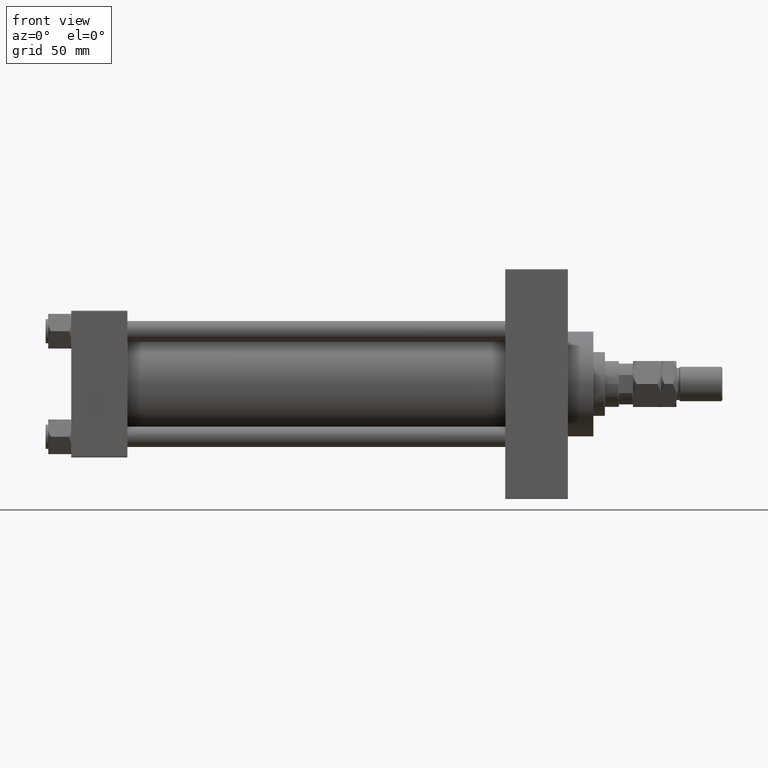
[diagram: clean part render]
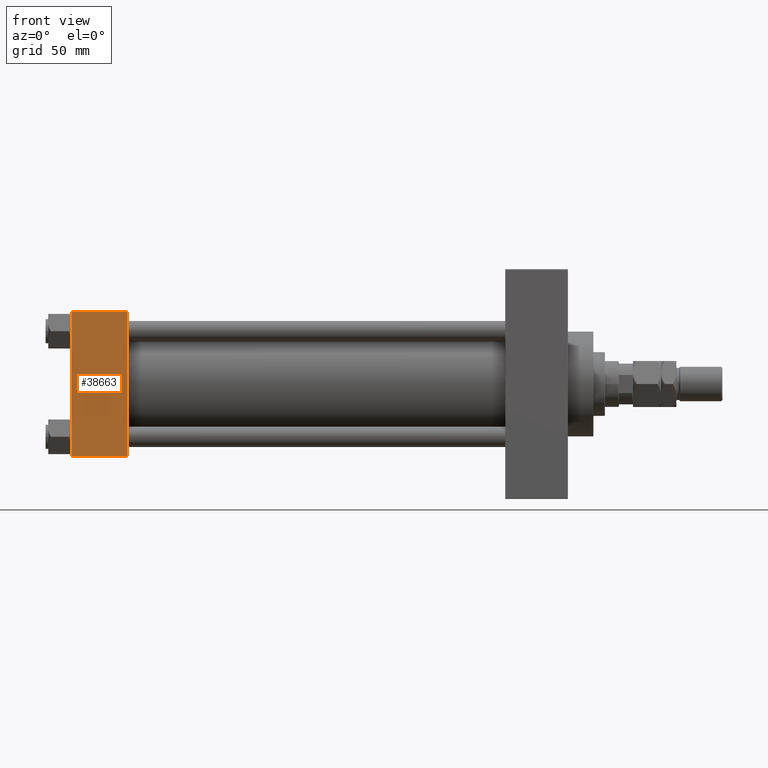
[diagram: same view with one face highlighted and labeled with its STEP entity id]
A machine part, front view. The second image highlights one B-rep face of the part: STEP entity #38663.
In plain terms, the highlighted planar face has unit normal (0, 1, 0).
Its self-contained STEP definition (entity closure, byte-faithful):
#6281 = CARTESIAN_POINT ( 'NONE',  ( 44.00000000000000000, -57.50000000000000711, 57.49999999999999289 ) ) ;
#6761 = ORIENTED_EDGE ( 'NONE', *, *, #48106, .F. ) ;
#9152 = DIRECTION ( 'NONE',  ( 1.000000000000000000, 0.000000000000000000, 0.000000000000000000 ) ) ;
#9546 = VECTOR ( 'NONE', #24243, 1000.000000000000000 ) ;
#10210 = FACE_OUTER_BOUND ( 'NONE', #11567, .T. ) ;
#10243 = ORIENTED_EDGE ( 'NONE', *, *, #12128, .T. ) ;
#11567 = EDGE_LOOP ( 'NONE', ( #14261, #15659, #6761, #10243 ) ) ;
#12128 = EDGE_CURVE ( 'NONE', #45899, #22341, #39015, .T. ) ;
#12562 = LINE ( 'NONE', #28520, #37355 ) ;
#12977 = VERTEX_POINT ( 'NONE', #42748 ) ;
#14261 = ORIENTED_EDGE ( 'NONE', *, *, #36597, .T. ) ;
#15659 = ORIENTED_EDGE ( 'NONE', *, *, #47142, .T. ) ;
#17969 = AXIS2_PLACEMENT_3D ( 'NONE', #26159, #50410, #34254 ) ;
#19171 = DIRECTION ( 'NONE',  ( -1.000000000000000000, 0.000000000000000000, 0.000000000000000000 ) ) ;
#22218 = DIRECTION ( 'NONE',  ( 0.000000000000000000, 0.000000000000000000, -1.000000000000000000 ) ) ;
#22341 = VERTEX_POINT ( 'NONE', #36852 ) ;
#24243 = DIRECTION ( 'NONE',  ( 0.000000000000000000, 0.000000000000000000, -1.000000000000000000 ) ) ;
#26159 = CARTESIAN_POINT ( 'NONE',  ( 44.00000000000000000, -57.50000000000000711, 57.49999999999999289 ) ) ;
#26183 = CARTESIAN_POINT ( 'NONE',  ( 44.00000000000000000, -57.50000000000000711, 57.00000000000000711 ) ) ;
#27474 = CARTESIAN_POINT ( 'NONE',  ( 44.00000000000000000, -57.50000000000000711, -57.00000000000000711 ) ) ;
#28520 = CARTESIAN_POINT ( 'NONE',  ( 44.00000000000000000, -57.50000000000000711, -57.00000000000000711 ) ) ;
#28625 = VECTOR ( 'NONE', #19171, 1000.000000000000000 ) ;
#29832 = PLANE ( 'NONE',  #17969 ) ;
#32076 = CARTESIAN_POINT ( 'NONE',  ( 0.000000000000000000, -57.50000000000000711, 57.49999999999999289 ) ) ;
#34254 = DIRECTION ( 'NONE',  ( 0.000000000000000000, -0.000000000000000000, 1.000000000000000000 ) ) ;
#35881 = CARTESIAN_POINT ( 'NONE',  ( 44.00000000000000000, -57.50000000000000711, 57.00000000000000711 ) ) ;
#36565 = VECTOR ( 'NONE', #22218, 1000.000000000000000 ) ;
#36597 = EDGE_CURVE ( 'NONE', #22341, #12977, #37036, .T. ) ;
#36852 = CARTESIAN_POINT ( 'NONE',  ( 0.000000000000000000, -57.50000000000000711, 57.00000000000000711 ) ) ;
#37036 = LINE ( 'NONE', #32076, #9546 ) ;
#37355 = VECTOR ( 'NONE', #9152, 1000.000000000000000 ) ;
#38663 = ADVANCED_FACE ( 'NONE', ( #10210 ), #29832, .F. ) ;
#39015 = LINE ( 'NONE', #35881, #28625 ) ;
#42066 = LINE ( 'NONE', #6281, #36565 ) ;
#42748 = CARTESIAN_POINT ( 'NONE',  ( 0.000000000000000000, -57.50000000000000711, -57.00000000000000711 ) ) ;
#45899 = VERTEX_POINT ( 'NONE', #26183 ) ;
#45983 = VERTEX_POINT ( 'NONE', #27474 ) ;
#47142 = EDGE_CURVE ( 'NONE', #12977, #45983, #12562, .T. ) ;
#48106 = EDGE_CURVE ( 'NONE', #45899, #45983, #42066, .T. ) ;
#50410 = DIRECTION ( 'NONE',  ( -0.000000000000000000, 1.000000000000000000, 0.000000000000000000 ) ) ;